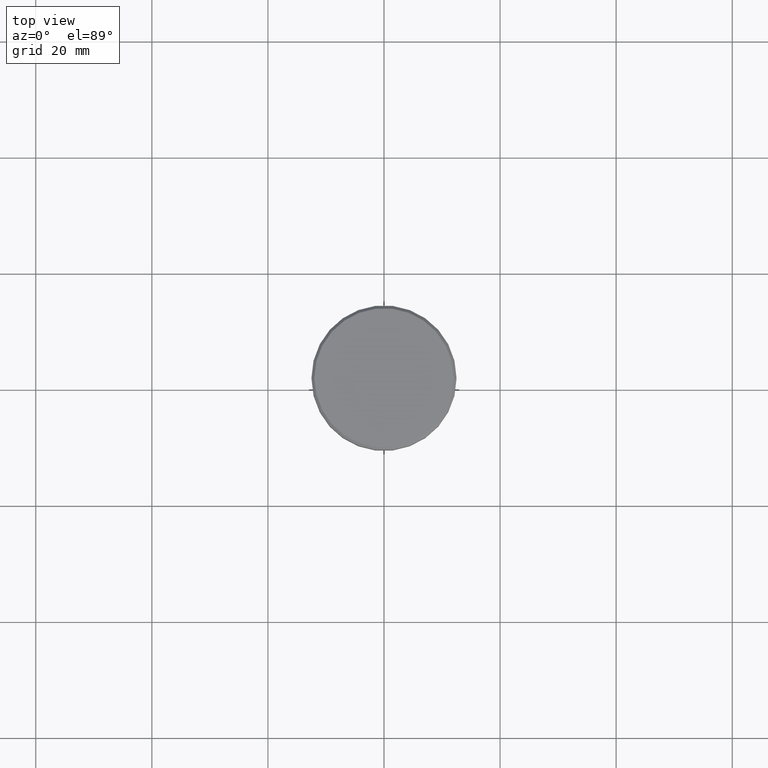
[diagram: clean part render]
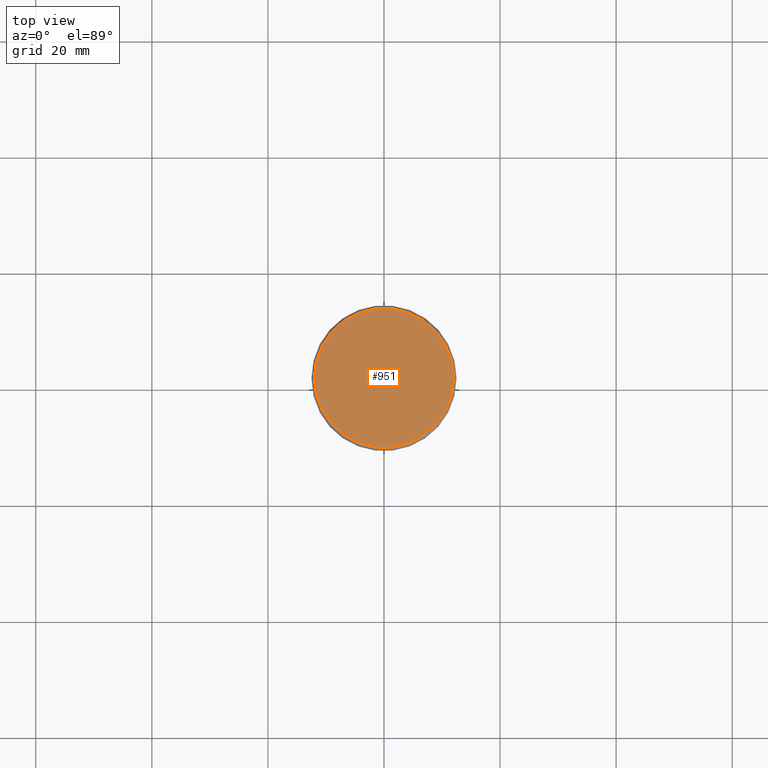
[diagram: same view with one face highlighted and labeled with its STEP entity id]
A machine part, top view. The second image highlights one B-rep face of the part: STEP entity #951.
In plain terms, the highlighted planar face has unit normal (0, -0, 1).
Its self-contained STEP definition (entity closure, byte-faithful):
#53 = DIRECTION ( 'NONE',  ( 1.000000000000000000, 0.000000000000000000, 0.000000000000000000 ) ) ;
#75 = DIRECTION ( 'NONE',  ( -0.000000000000000000, -0.000000000000000000, 1.000000000000000000 ) ) ;
#150 = VERTEX_POINT ( 'NONE', #177 ) ;
#177 = CARTESIAN_POINT ( 'NONE',  ( -12.00000000000002487, 0.000000000000000000, 0.000000000000000000 ) ) ;
#179 = CIRCLE ( 'NONE', #590, 12.00000000000002487 ) ;
#236 = AXIS2_PLACEMENT_3D ( 'NONE', #798, #75, #520 ) ;
#303 = DIRECTION ( 'NONE',  ( 1.000000000000000000, 0.000000000000000000, 0.000000000000000000 ) ) ;
#381 = EDGE_CURVE ( 'NONE', #150, #560, #179, .T. ) ;
#398 = CARTESIAN_POINT ( 'NONE',  ( 0.000000000000000000, 0.000000000000000000, 0.000000000000000000 ) ) ;
#468 = ORIENTED_EDGE ( 'NONE', *, *, #381, .T. ) ;
#492 = CIRCLE ( 'NONE', #236, 12.00000000000002487 ) ;
#507 = EDGE_CURVE ( 'NONE', #560, #150, #492, .T. ) ;
#520 = DIRECTION ( 'NONE',  ( 1.000000000000000000, 0.000000000000000000, 0.000000000000000000 ) ) ;
#554 = AXIS2_PLACEMENT_3D ( 'NONE', #870, #1044, #53 ) ;
#560 = VERTEX_POINT ( 'NONE', #1167 ) ;
#586 = PLANE ( 'NONE',  #554 ) ;
#590 = AXIS2_PLACEMENT_3D ( 'NONE', #398, #595, #303 ) ;
#595 = DIRECTION ( 'NONE',  ( -0.000000000000000000, -0.000000000000000000, 1.000000000000000000 ) ) ;
#792 = FACE_OUTER_BOUND ( 'NONE', #1024, .T. ) ;
#798 = CARTESIAN_POINT ( 'NONE',  ( 0.000000000000000000, 0.000000000000000000, 0.000000000000000000 ) ) ;
#870 = CARTESIAN_POINT ( 'NONE',  ( 0.000000000000000000, 0.000000000000000000, 0.000000000000000000 ) ) ;
#883 = ORIENTED_EDGE ( 'NONE', *, *, #507, .T. ) ;
#951 = ADVANCED_FACE ( 'NONE', ( #792 ), #586, .T. ) ;
#1024 = EDGE_LOOP ( 'NONE', ( #468, #883 ) ) ;
#1044 = DIRECTION ( 'NONE',  ( 0.000000000000000000, -0.000000000000000000, 1.000000000000000000 ) ) ;
#1167 = CARTESIAN_POINT ( 'NONE',  ( 12.00000000000002487, 1.500192328955509115E-15, 0.000000000000000000 ) ) ;